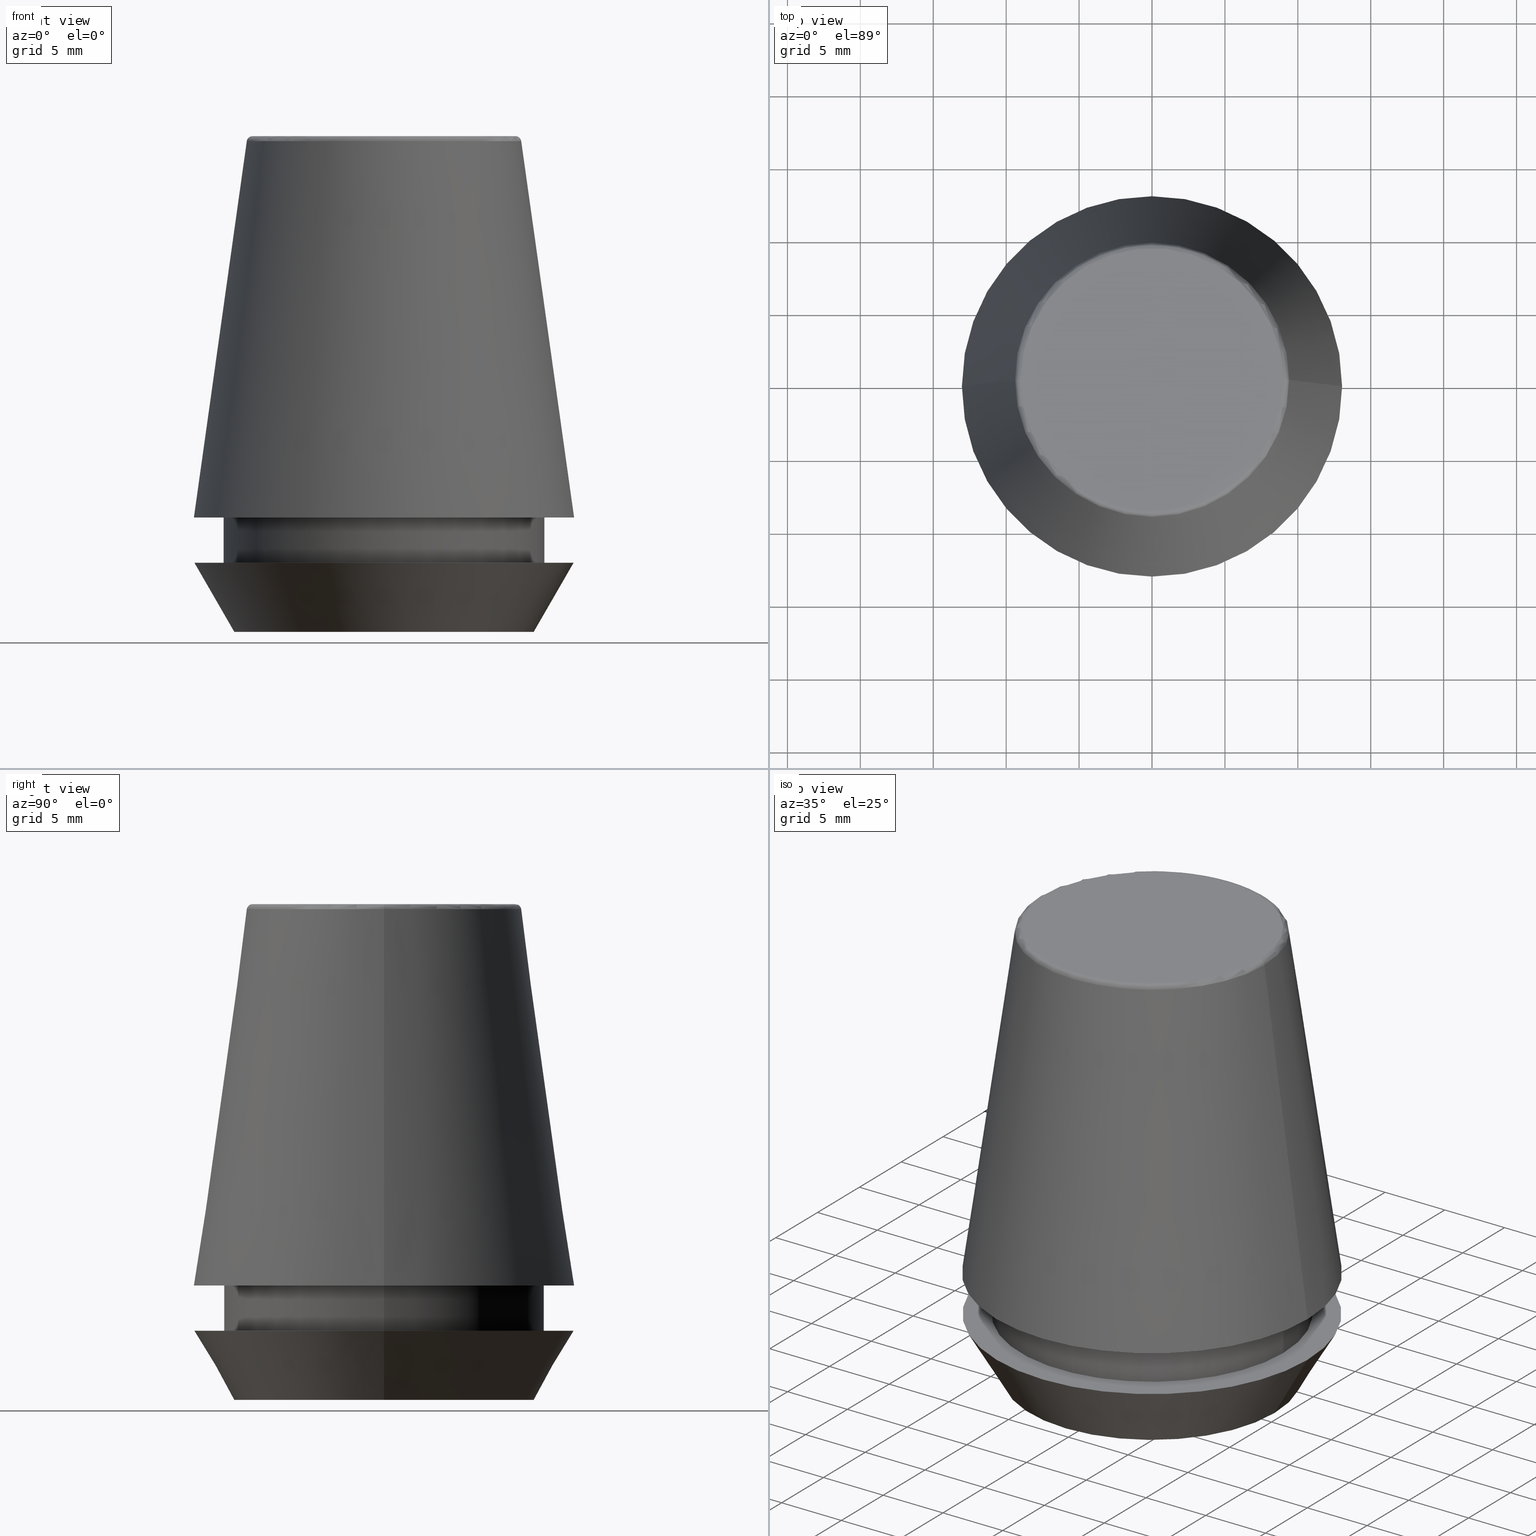
[diagram: canonical four-view strip — front | top / right | iso, engineering-drawing reading convention]
A machine part, canonical four-view strip (front | top / right | iso — engineering-drawing reading convention). The complete STEP part file that produces these views, byte-faithful:
ISO-10303-21;
HEADER;
FILE_DESCRIPTION (( 'STEP AP203' ),
    '1' );
FILE_NAME ('TAP COLLET ER 25G  4.5  X 3.4.STEP',
    '2019-04-09T09:48:16',
    ( '' ),
    ( '' ),
    'SwSTEP 2.0',
    'SolidWorks 2014',
    '' );
FILE_SCHEMA (( 'CONFIG_CONTROL_DESIGN' ));
ENDSEC;

DATA;
#1 = CARTESIAN_POINT ( 'NONE',  ( -10.26217568973925200, 1.256754061072695800E-015, 0.0000000000000000000 ) ) ;
#2 = PERSON ( 'UNSPECIFIED', 'UNSPECIFIED', 'UNSPECIFIED', ('UNSPECIFIED'), ('UNSPECIFIED'), ('UNSPECIFIED') ) ;
#3 = CARTESIAN_POINT ( 'NONE',  ( 0.0000000000000000000, 9.012603057622234500, 34.00000000000000000 ) ) ;
#4 = APPROVAL_PERSON_ORGANIZATION ( #134, #122, #136 ) ;
#5 = CARTESIAN_POINT ( 'NONE',  ( 0.0000000000000000000, 0.0000000000000000000, 4.742050807568884500 ) ) ;
#6 = VERTEX_POINT ( 'NONE', #258 ) ;
#7 = PLANE ( 'NONE',  #203 ) ;
#8 = LINE ( 'NONE', #23, #301 ) ;
#9 = DIRECTION ( 'NONE',  ( -0.0000000000000000000, -0.0000000000000000000, 1.000000000000000000 ) ) ;
#10 = DIRECTION ( 'NONE',  ( 1.000000000000000000, 0.0000000000000000000, 0.0000000000000000000 ) ) ;
#11 = ORIENTED_EDGE ( 'NONE', *, *, #179, .F. ) ;
#12 = ORIENTED_EDGE ( 'NONE', *, *, #238, .T. ) ;
#13 = DIRECTION ( 'NONE',  ( -0.0000000000000000000, -0.0000000000000000000, 1.000000000000000000 ) ) ;
#14 = FACE_OUTER_BOUND ( 'NONE', #103, .T. ) ;
#15 = CARTESIAN_POINT ( 'NONE',  ( 11.00000000000000000, 0.0000000000000000000, 101.8074564848000400 ) ) ;
#16 = APPROVAL ( #25, 'UNSPECIFIED' ) ;
#17 = CIRCLE ( 'NONE', #80, 9.012603057622234500 ) ;
#18 = PERSON_AND_ORGANIZATION ( #2, #51 ) ;
#19 = VERTEX_POINT ( 'NONE', #308 ) ;
#20 = ORIENTED_EDGE ( 'NONE', *, *, #287, .F. ) ;
#21 = CONICAL_SURFACE ( 'NONE', #262, 10.26217568973925200, 0.5235987755982940400 ) ;
#22 = APPROVAL ( #211, 'UNSPECIFIED' ) ;
#23 = CARTESIAN_POINT ( 'NONE',  ( 10.26217568973925200, 0.0000000000000000000, 0.0000000000000000000 ) ) ;
#24 = DATE_AND_TIME ( #330, #378 ) ;
#25 = APPROVAL_STATUS ( 'not_yet_approved' ) ;
#26 = EDGE_LOOP ( 'NONE', ( #252, #148, #291, #194 ) ) ;
#27 = ORIENTED_EDGE ( 'NONE', *, *, #302, .F. ) ;
#28 = ADVANCED_FACE ( 'NONE', ( #367 ), #21, .T. ) ;
#29 = DIRECTION ( 'NONE',  ( -0.0000000000000000000, -0.0000000000000000000, 1.000000000000000000 ) ) ;
#30 = AXIS2_PLACEMENT_3D ( 'NONE', #93, #31, #216 ) ;
#31 = DIRECTION ( 'NONE',  ( -0.0000000000000000000, -0.0000000000000000000, 1.000000000000000000 ) ) ;
#32 = DIRECTION ( 'NONE',  ( 1.000000000000000000, 0.0000000000000000000, 0.0000000000000000000 ) ) ;
#33 = AXIS2_PLACEMENT_3D ( 'NONE', #352, #123, #197 ) ;
#34 = FACE_BOUND ( 'NONE', #143, .T. ) ;
#35 = APPROVAL_ROLE ( '' ) ;
#36 = DIRECTION ( 'NONE',  ( 1.000000000000000000, 0.0000000000000000000, 0.0000000000000000000 ) ) ;
#37 = ORIENTED_EDGE ( 'NONE', *, *, #304, .T. ) ;
#38 = UNCERTAINTY_MEASURE_WITH_UNIT (LENGTH_MEASURE( 1.000000000000000100E-005 ), #382, 'distance_accuracy_value', 'NONE');
#39 = SECURITY_CLASSIFICATION ( '', '', #78 ) ;
#40 = CIRCLE ( 'NONE', #231, 10.26217568973925200 ) ;
#41 = DIRECTION ( 'NONE',  ( 1.000000000000000000, 0.0000000000000000000, 0.0000000000000000000 ) ) ;
#42 = CC_DESIGN_PERSON_AND_ORGANIZATION_ASSIGNMENT ( #253, #281, ( #39 ) ) ;
#43 = ADVANCED_FACE ( 'NONE', ( #188 ), #344, .T. ) ;
#44 = FACE_OUTER_BOUND ( 'NONE', #259, .T. ) ;
#45 = CARTESIAN_POINT ( 'NONE',  ( -10.26217568973925200, 1.424397449982127500E-015, 0.0000000000000000000 ) ) ;
#46 = CC_DESIGN_APPROVAL ( #22, ( #145 ) ) ;
#47 = COORDINATED_UNIVERSAL_TIME_OFFSET ( 5, 30, .AHEAD. ) ;
#48 = DIRECTION ( 'NONE',  ( 0.0000000000000000000, 0.0000000000000000000, -1.000000000000000000 ) ) ;
#49 = CARTESIAN_POINT ( 'NONE',  ( 13.03657776635556700, 1.596520323340289600E-015, 7.842050807568876200 ) ) ;
#50 = ORIENTED_EDGE ( 'NONE', *, *, #319, .F. ) ;
#51 = ORGANIZATION ( 'UNSPECIFIED', 'UNSPECIFIED', '' ) ;
#52 = CARTESIAN_POINT ( 'NONE',  ( 0.0000000000000000000, 0.0000000000000000000, 0.0000000000000000000 ) ) ;
#53 = VECTOR ( 'NONE', #13, 1000.000000000000000 ) ;
#54 = CIRCLE ( 'NONE', #121, 0.4000000000000010200 ) ;
#55 = EDGE_LOOP ( 'NONE', ( #27, #137, #144, #195 ) ) ;
#56 = AXIS2_PLACEMENT_3D ( 'NONE', #60, #351, #240 ) ;
#57 =( GEOMETRIC_REPRESENTATION_CONTEXT ( 3 ) GLOBAL_UNCERTAINTY_ASSIGNED_CONTEXT ( ( #38 ) ) GLOBAL_UNIT_ASSIGNED_CONTEXT ( ( #382, #215, #90 ) ) REPRESENTATION_CONTEXT ( 'NONE', 'WORKASPACE' ) );
#58 = PERSON_AND_ORGANIZATION_ROLE ( 'design_owner' ) ;
#59 = DIRECTION ( 'NONE',  ( -0.0000000000000000000, -0.0000000000000000000, 1.000000000000000000 ) ) ;
#60 = CARTESIAN_POINT ( 'NONE',  ( 0.0000000000000000000, 0.0000000000000000000, 4.742050807568884500 ) ) ;
#61 = FACE_OUTER_BOUND ( 'NONE', #243, .T. ) ;
#62 = APPROVAL_DATE_TIME ( #354, #16 ) ;
#63 = DIRECTION ( 'NONE',  ( 1.000000000000000000, 0.0000000000000000000, 0.0000000000000000000 ) ) ;
#64 = CIRCLE ( 'NONE', #30, 11.00000000000000000 ) ;
#65 = DIRECTION ( 'NONE',  ( 0.0000000000000000000, -0.0000000000000000000, 1.000000000000000000 ) ) ;
#66 = APPROVAL_PERSON_ORGANIZATION ( #18, #22, #35 ) ;
#67 = CARTESIAN_POINT ( 'NONE',  ( 0.0000000000000000000, 0.0000000000000000000, 0.0000000000000000000 ) ) ;
#68 = VERTEX_POINT ( 'NONE', #151 ) ;
#69 = DIRECTION ( 'NONE',  ( 1.000000000000000000, 0.0000000000000000000, 0.0000000000000000000 ) ) ;
#70 = DIRECTION ( 'NONE',  ( 1.000000000000000000, 0.0000000000000000000, 0.0000000000000000000 ) ) ;
#71 = DESIGN_CONTEXT ( 'detailed design', #228, 'design' ) ;
#72 = PRODUCT_DEFINITION ( 'UNKNOWN', '', #145, #71 ) ;
#73 = ORIENTED_EDGE ( 'NONE', *, *, #241, .T. ) ;
#74 = APPROVAL_DATE_TIME ( #316, #122 ) ;
#75 = CIRCLE ( 'NONE', #245, 9.012603057622234500 ) ;
#76 = VERTEX_POINT ( 'NONE', #371 ) ;
#77 = DIRECTION ( 'NONE',  ( 0.1391731009600587800, 1.704378926181474000E-017, -0.9902680687415712500 ) ) ;
#78 = SECURITY_CLASSIFICATION_LEVEL ( 'unclassified' ) ;
#79 = LINE ( 'NONE', #15, #53 ) ;
#80 = AXIS2_PLACEMENT_3D ( 'NONE', #328, #220, #101 ) ;
#81 = DIRECTION ( 'NONE',  ( -1.000000000000000000, 0.0000000000000000000, 0.0000000000000000000 ) ) ;
#82 = ORIENTED_EDGE ( 'NONE', *, *, #238, .F. ) ;
#83 = PRODUCT_RELATED_PRODUCT_CATEGORY ( 'detail', '', ( #153 ) ) ;
#84 = LOCAL_TIME ( 15, 18, 16.00000000000000000, #256 ) ;
#85 = ORIENTED_EDGE ( 'NONE', *, *, #282, .T. ) ;
#86 = CIRCLE ( 'NONE', #266, 9.408710285118862900 ) ;
#87 = ORIENTED_EDGE ( 'NONE', *, *, #213, .T. ) ;
#88 = CARTESIAN_POINT ( 'NONE',  ( 0.0000000000000000000, 0.0000000000000000000, 34.00000000000000000 ) ) ;
#89 = DATE_AND_TIME ( #229, #84 ) ;
#90 =( NAMED_UNIT ( * ) SI_UNIT ( $, .STERADIAN. ) SOLID_ANGLE_UNIT ( ) );
#91 = ORIENTED_EDGE ( 'NONE', *, *, #365, .F. ) ;
#92 = PERSON_AND_ORGANIZATION_ROLE ( 'creator' ) ;
#93 = CARTESIAN_POINT ( 'NONE',  ( 0.0000000000000000000, 0.0000000000000000000, 7.842050807568890400 ) ) ;
#94 = CIRCLE ( 'NONE', #157, 13.00000000000000000 ) ;
#95 = DIRECTION ( 'NONE',  ( -1.000000000000000000, 1.224646799147353200E-016, 0.0000000000000000000 ) ) ;
#96 = DIRECTION ( 'NONE',  ( -0.4999999999999957800, 6.123233995736714300E-017, 0.8660254037844410400 ) ) ;
#97 = CC_DESIGN_APPROVAL ( #16, ( #72 ) ) ;
#98 = DIRECTION ( 'NONE',  ( 1.000000000000000000, 0.0000000000000000000, 0.0000000000000000000 ) ) ;
#99 = VERTEX_POINT ( 'NONE', #45 ) ;
#100 = FACE_OUTER_BOUND ( 'NONE', #315, .T. ) ;
#101 = DIRECTION ( 'NONE',  ( 1.000000000000000000, 0.0000000000000000000, 0.0000000000000000000 ) ) ;
#102 = PERSON_AND_ORGANIZATION_ROLE ( 'creator' ) ;
#103 = EDGE_LOOP ( 'NONE', ( #87, #73, #239, #91 ) ) ;
#104 = CC_DESIGN_DATE_AND_TIME_ASSIGNMENT ( #377, #112, ( #39 ) ) ;
#105 = CARTESIAN_POINT ( 'NONE',  ( 0.0000000000000000000, 0.0000000000000000000, 101.8074564848000400 ) ) ;
#106 = ORIENTED_EDGE ( 'NONE', *, *, #372, .T. ) ;
#107 = DIRECTION ( 'NONE',  ( -0.0000000000000000000, -0.0000000000000000000, 1.000000000000000000 ) ) ;
#108 = CARTESIAN_POINT ( 'NONE',  ( -9.408710285118862900, 0.0000000000000000000, 33.65566924038402900 ) ) ;
#109 = ORIENTED_EDGE ( 'NONE', *, *, #336, .T. ) ;
#110 = FACE_OUTER_BOUND ( 'NONE', #55, .T. ) ;
#111 = DIRECTION ( 'NONE',  ( 0.0000000000000000000, 0.0000000000000000000, -1.000000000000000000 ) ) ;
#112 = DATE_TIME_ROLE ( 'classification_date' ) ;
#113 = CARTESIAN_POINT ( 'NONE',  ( 9.012603057622234500, 0.0000000000000000000, 33.60000000000000100 ) ) ;
#114 = DIRECTION ( 'NONE',  ( 1.000000000000000000, 0.0000000000000000000, 0.0000000000000000000 ) ) ;
#115 = AXIS2_PLACEMENT_3D ( 'NONE', #113, #385, #185 ) ;
#116 = COORDINATED_UNIVERSAL_TIME_OFFSET ( 5, 30, .AHEAD. ) ;
#117 = LINE ( 'NONE', #300, #264 ) ;
#118 = ORIENTED_EDGE ( 'NONE', *, *, #175, .T. ) ;
#119 = TOROIDAL_SURFACE ( 'NONE', #324, 9.012603057622234500, 0.4000000000000009700 ) ;
#120 = LINE ( 'NONE', #290, #317 ) ;
#121 = AXIS2_PLACEMENT_3D ( 'NONE', #189, #349, #95 ) ;
#122 = APPROVAL ( #311, 'UNSPECIFIED' ) ;
#123 = DIRECTION ( 'NONE',  ( -0.0000000000000000000, -0.0000000000000000000, 1.000000000000000000 ) ) ;
#124 = CARTESIAN_POINT ( 'NONE',  ( -9.012603057622234500, 1.127980121063915600E-015, 34.00000000000000000 ) ) ;
#125 = CYLINDRICAL_SURFACE ( 'NONE', #341, 11.00000000000000000 ) ;
#126 = AXIS2_PLACEMENT_3D ( 'NONE', #202, #140, #32 ) ;
#127 = DIRECTION ( 'NONE',  ( -0.0000000000000000000, -0.0000000000000000000, 1.000000000000000000 ) ) ;
#128 = DIRECTION ( 'NONE',  ( -0.0000000000000000000, -0.0000000000000000000, 1.000000000000000000 ) ) ;
#129 = ORIENTED_EDGE ( 'NONE', *, *, #241, .F. ) ;
#130 = ORIENTED_EDGE ( 'NONE', *, *, #365, .T. ) ;
#131 = EDGE_LOOP ( 'NONE', ( #173, #12 ) ) ;
#132 = ADVANCED_FACE ( 'NONE', ( #34, #44 ), #227, .F. ) ;
#133 = ORIENTED_EDGE ( 'NONE', *, *, #302, .T. ) ;
#134 = PERSON_AND_ORGANIZATION ( #2, #51 ) ;
#135 = VECTOR ( 'NONE', #96, 1000.000000000000200 ) ;
#136 = APPROVAL_ROLE ( '' ) ;
#137 = ORIENTED_EDGE ( 'NONE', *, *, #223, .T. ) ;
#138 = CARTESIAN_POINT ( 'NONE',  ( 0.0000000000000000000, 0.0000000000000000000, 33.65566924038402900 ) ) ;
#139 = ADVANCED_FACE ( 'NONE', ( #353 ), #119, .T. ) ;
#140 = DIRECTION ( 'NONE',  ( -0.0000000000000000000, -0.0000000000000000000, 1.000000000000000000 ) ) ;
#141 = CC_DESIGN_PERSON_AND_ORGANIZATION_ASSIGNMENT ( #276, #102, ( #72 ) ) ;
#142 = VERTEX_POINT ( 'NONE', #288 ) ;
#143 = EDGE_LOOP ( 'NONE', ( #374, #306 ) ) ;
#144 = ORIENTED_EDGE ( 'NONE', *, *, #381, .T. ) ;
#145 = PRODUCT_DEFINITION_FORMATION_WITH_SPECIFIED_SOURCE ( 'ANY', '', #153, .NOT_KNOWN. ) ;
#146 = AXIS2_PLACEMENT_3D ( 'NONE', #138, #205, #296 ) ;
#147 = APPLICATION_CONTEXT ( 'configuration controlled 3d designs of mechanical parts and assemblies' ) ;
#148 = ORIENTED_EDGE ( 'NONE', *, *, #366, .T. ) ;
#149 = CC_DESIGN_APPROVAL ( #122, ( #39 ) ) ;
#150 = CIRCLE ( 'NONE', #115, 0.3999999999999975800 ) ;
#151 = CARTESIAN_POINT ( 'NONE',  ( -13.00000000000000000, 1.592040838891559100E-015, 4.742050807568884500 ) ) ;
#152 = CARTESIAN_POINT ( 'NONE',  ( 0.0000000000000000000, 13.03657776635556700, 7.842050807568883300 ) ) ;
#153 = PRODUCT ( 'TAP COLLET ER 25G  4.5  X 3.4', 'TAP COLLET ER 25G  4.5  X 3.4', '', ( #177 ) ) ;
#154 = VERTEX_POINT ( 'NONE', #108 ) ;
#155 = CARTESIAN_POINT ( 'NONE',  ( 9.408710285118862900, 1.374377508408924700E-015, 33.65566924038402900 ) ) ;
#156 = CIRCLE ( 'NONE', #251, 13.03657776635556700 ) ;
#157 = AXIS2_PLACEMENT_3D ( 'NONE', #326, #387, #201 ) ;
#158 = CIRCLE ( 'NONE', #198, 11.00000000000000000 ) ;
#159 = CARTESIAN_POINT ( 'NONE',  ( 0.0000000000000000000, 0.0000000000000000000, 33.65566924038402900 ) ) ;
#160 = ADVANCED_FACE ( 'NONE', ( #271 ), #234, .T. ) ;
#161 = CARTESIAN_POINT ( 'NONE',  ( 10.26217568973925200, 0.0000000000000000000, 0.0000000000000000000 ) ) ;
#162 = AXIS2_PLACEMENT_3D ( 'NONE', #152, #65, #98 ) ;
#163 = AXIS2_PLACEMENT_3D ( 'NONE', #303, #193, #36 ) ;
#164 = DIRECTION ( 'NONE',  ( -0.0000000000000000000, -0.0000000000000000000, 1.000000000000000000 ) ) ;
#165 = EDGE_LOOP ( 'NONE', ( #11, #233 ) ) ;
#166 = DIRECTION ( 'NONE',  ( 1.000000000000000000, 0.0000000000000000000, 0.0000000000000000000 ) ) ;
#167 = DIRECTION ( 'NONE',  ( -0.0000000000000000000, -0.0000000000000000000, 1.000000000000000000 ) ) ;
#168 = DIRECTION ( 'NONE',  ( -1.000000000000000000, 0.0000000000000000000, 0.0000000000000000000 ) ) ;
#169 = PLANE ( 'NONE',  #187 ) ;
#170 = CIRCLE ( 'NONE', #163, 11.00000000000000000 ) ;
#171 = ORIENTED_EDGE ( 'NONE', *, *, #304, .F. ) ;
#172 = ADVANCED_FACE ( 'NONE', ( #61 ), #200, .T. ) ;
#173 = ORIENTED_EDGE ( 'NONE', *, *, #319, .T. ) ;
#174 = PERSON_AND_ORGANIZATION ( #2, #51 ) ;
#175 = EDGE_CURVE ( 'NONE', #338, #232, #156, .T. ) ;
#176 = CC_DESIGN_PERSON_AND_ORGANIZATION_ASSIGNMENT ( #286, #58, ( #153 ) ) ;
#177 = MECHANICAL_CONTEXT ( 'NONE', #147, 'mechanical' ) ;
#178 = EDGE_LOOP ( 'NONE', ( #181, #384, #292, #118 ) ) ;
#179 = EDGE_CURVE ( 'NONE', #218, #99, #321, .T. ) ;
#180 = DIRECTION ( 'NONE',  ( 0.0000000000000000000, -0.0000000000000000000, 1.000000000000000000 ) ) ;
#181 = ORIENTED_EDGE ( 'NONE', *, *, #366, .F. ) ;
#182 = ADVANCED_FACE ( 'NONE', ( #110 ), #279, .T. ) ;
#183 = CIRCLE ( 'NONE', #226, 11.00000000000000000 ) ;
#184 = DIRECTION ( 'NONE',  ( -1.000000000000000000, 0.0000000000000000000, -0.0000000000000000000 ) ) ;
#185 = DIRECTION ( 'NONE',  ( 0.0000000000000000000, 0.0000000000000000000, -1.000000000000000000 ) ) ;
#186 = PERSON_AND_ORGANIZATION ( #2, #51 ) ;
#187 = AXIS2_PLACEMENT_3D ( 'NONE', #52, #180, #214 ) ;
#188 = FACE_OUTER_BOUND ( 'NONE', #178, .T. ) ;
#189 = CARTESIAN_POINT ( 'NONE',  ( -9.012603057622234500, 1.103725548650271700E-015, 33.60000000000000100 ) ) ;
#190 = DIRECTION ( 'NONE',  ( 1.000000000000000000, 0.0000000000000000000, 0.0000000000000000000 ) ) ;
#191 = CARTESIAN_POINT ( 'NONE',  ( 0.0000000000000000000, 0.0000000000000000000, 0.0000000000000000000 ) ) ;
#192 = CLOSED_SHELL ( 'NONE', ( #172, #160, #357, #28, #369, #182, #132, #196, #257, #43, #139, #246 ) ) ;
#193 = DIRECTION ( 'NONE',  ( -0.0000000000000000000, -0.0000000000000000000, 1.000000000000000000 ) ) ;
#194 = ORIENTED_EDGE ( 'NONE', *, *, #343, .F. ) ;
#195 = ORIENTED_EDGE ( 'NONE', *, *, #362, .F. ) ;
#196 = ADVANCED_FACE ( 'NONE', ( #209 ), #125, .T. ) ;
#197 = DIRECTION ( 'NONE',  ( 1.000000000000000000, 0.0000000000000000000, 0.0000000000000000000 ) ) ;
#198 = AXIS2_PLACEMENT_3D ( 'NONE', #5, #29, #348 ) ;
#199 = DIRECTION ( 'NONE',  ( -0.0000000000000000000, -0.0000000000000000000, 1.000000000000000000 ) ) ;
#200 = TOROIDAL_SURFACE ( 'NONE', #242, 9.012603057622234500, 0.4000000000000009700 ) ;
#201 = DIRECTION ( 'NONE',  ( 1.000000000000000000, 0.0000000000000000000, 0.0000000000000000000 ) ) ;
#202 = CARTESIAN_POINT ( 'NONE',  ( 0.0000000000000000000, 0.0000000000000000000, 7.842050807568876200 ) ) ;
#203 = AXIS2_PLACEMENT_3D ( 'NONE', #3, #247, #274 ) ;
#204 = FACE_OUTER_BOUND ( 'NONE', #165, .T. ) ;
#205 = DIRECTION ( 'NONE',  ( -0.0000000000000000000, -0.0000000000000000000, 1.000000000000000000 ) ) ;
#206 = APPROVAL_PERSON_ORGANIZATION ( #174, #16, #222 ) ;
#207 = CARTESIAN_POINT ( 'NONE',  ( 0.0000000000000000000, 0.0000000000000000000, 7.842050807568876200 ) ) ;
#208 = MANIFOLD_SOLID_BREP ( 'Revolve1', #192 ) ;
#209 = FACE_OUTER_BOUND ( 'NONE', #299, .T. ) ;
#210 = LINE ( 'NONE', #1, #135 ) ;
#211 = APPROVAL_STATUS ( 'not_yet_approved' ) ;
#212 = APPLICATION_PROTOCOL_DEFINITION ( 'international standard', 'config_control_design', 1994, #147 ) ;
#213 = EDGE_CURVE ( 'NONE', #19, #142, #170, .T. ) ;
#214 = DIRECTION ( 'NONE',  ( 1.000000000000000000, 0.0000000000000000000, 0.0000000000000000000 ) ) ;
#215 =( NAMED_UNIT ( * ) PLANE_ANGLE_UNIT ( ) SI_UNIT ( $, .RADIAN. ) );
#216 = DIRECTION ( 'NONE',  ( 1.000000000000000000, 0.0000000000000000000, 0.0000000000000000000 ) ) ;
#217 = EDGE_CURVE ( 'NONE', #154, #265, #86, .T. ) ;
#218 = VERTEX_POINT ( 'NONE', #161 ) ;
#219 = CIRCLE ( 'NONE', #56, 13.00000000000000000 ) ;
#220 = DIRECTION ( 'NONE',  ( -0.0000000000000000000, -0.0000000000000000000, 1.000000000000000000 ) ) ;
#221 = VERTEX_POINT ( 'NONE', #277 ) ;
#222 = APPROVAL_ROLE ( '' ) ;
#223 = EDGE_CURVE ( 'NONE', #99, #218, #40, .T. ) ;
#224 = CARTESIAN_POINT ( 'NONE',  ( 0.0000000000000000000, 0.0000000000000000000, 0.0000000000000000000 ) ) ;
#225 = ORIENTED_EDGE ( 'NONE', *, *, #336, .F. ) ;
#226 = AXIS2_PLACEMENT_3D ( 'NONE', #331, #358, #323 ) ;
#227 = PLANE ( 'NONE',  #318 ) ;
#228 = APPLICATION_CONTEXT ( 'configuration controlled 3d designs of mechanical parts and assemblies' ) ;
#229 = CALENDAR_DATE ( 2019, 9, 4 ) ;
#230 = ORIENTED_EDGE ( 'NONE', *, *, #314, .T. ) ;
#231 = AXIS2_PLACEMENT_3D ( 'NONE', #67, #128, #190 ) ;
#232 = VERTEX_POINT ( 'NONE', #329 ) ;
#233 = ORIENTED_EDGE ( 'NONE', *, *, #223, .F. ) ;
#234 = CONICAL_SURFACE ( 'NONE', #350, 13.03657776635556700, 0.1396263401595396500 ) ;
#235 = AXIS2_PLACEMENT_3D ( 'NONE', #332, #164, #41 ) ;
#236 = LOCAL_TIME ( 15, 18, 16.00000000000000000, #47 ) ;
#237 = APPLICATION_PROTOCOL_DEFINITION ( 'international standard', 'config_control_design', 1994, #228 ) ;
#238 = EDGE_CURVE ( 'NONE', #325, #76, #17, .T. ) ;
#239 = ORIENTED_EDGE ( 'NONE', *, *, #376, .F. ) ;
#240 = DIRECTION ( 'NONE',  ( 1.000000000000000000, 0.0000000000000000000, 0.0000000000000000000 ) ) ;
#241 = EDGE_CURVE ( 'NONE', #142, #294, #117, .T. ) ;
#242 = AXIS2_PLACEMENT_3D ( 'NONE', #307, #167, #166 ) ;
#243 = EDGE_LOOP ( 'NONE', ( #85, #109, #50, #283 ) ) ;
#244 = EDGE_LOOP ( 'NONE', ( #363, #37 ) ) ;
#245 = AXIS2_PLACEMENT_3D ( 'NONE', #88, #59, #63 ) ;
#246 = ADVANCED_FACE ( 'NONE', ( #260 ), #7, .F. ) ;
#247 = DIRECTION ( 'NONE',  ( 0.0000000000000000000, 0.0000000000000000000, -1.000000000000000000 ) ) ;
#248 = CALENDAR_DATE ( 2019, 9, 4 ) ;
#249 = AXIS2_PLACEMENT_3D ( 'NONE', #191, #268, #293 ) ;
#250 = DIRECTION ( 'NONE',  ( -0.1391731009600587800, 0.0000000000000000000, -0.9902680687415712500 ) ) ;
#251 = AXIS2_PLACEMENT_3D ( 'NONE', #305, #107, #10 ) ;
#252 = ORIENTED_EDGE ( 'NONE', *, *, #282, .F. ) ;
#253 = PERSON_AND_ORGANIZATION ( #2, #51 ) ;
#254 = ORIENTED_EDGE ( 'NONE', *, *, #381, .F. ) ;
#255 = DIRECTION ( 'NONE',  ( 1.000000000000000000, 0.0000000000000000000, 0.0000000000000000000 ) ) ;
#256 = COORDINATED_UNIVERSAL_TIME_OFFSET ( 5, 30, .AHEAD. ) ;
#257 = ADVANCED_FACE ( 'NONE', ( #100, #327 ), #272, .F. ) ;
#258 = CARTESIAN_POINT ( 'NONE',  ( 13.00000000000000000, 0.0000000000000000000, 4.742050807568884500 ) ) ;
#259 = EDGE_LOOP ( 'NONE', ( #275, #270 ) ) ;
#260 = FACE_OUTER_BOUND ( 'NONE', #131, .T. ) ;
#261 = PERSON_AND_ORGANIZATION_ROLE ( 'design_supplier' ) ;
#262 = AXIS2_PLACEMENT_3D ( 'NONE', #269, #342, #114 ) ;
#263 = CC_DESIGN_PERSON_AND_ORGANIZATION_ASSIGNMENT ( #186, #92, ( #145 ) ) ;
#264 = VECTOR ( 'NONE', #127, 1000.000000000000000 ) ;
#265 = VERTEX_POINT ( 'NONE', #155 ) ;
#266 = AXIS2_PLACEMENT_3D ( 'NONE', #159, #361, #69 ) ;
#267 = CALENDAR_DATE ( 2019, 9, 4 ) ;
#268 = DIRECTION ( 'NONE',  ( 0.0000000000000000000, 0.0000000000000000000, 1.000000000000000000 ) ) ;
#269 = CARTESIAN_POINT ( 'NONE',  ( 0.0000000000000000000, 0.0000000000000000000, 0.0000000000000000000 ) ) ;
#270 = ORIENTED_EDGE ( 'NONE', *, *, #362, .T. ) ;
#271 = FACE_OUTER_BOUND ( 'NONE', #26, .T. ) ;
#272 = PLANE ( 'NONE',  #162 ) ;
#273 = LINE ( 'NONE', #49, #375 ) ;
#274 = DIRECTION ( 'NONE',  ( -1.000000000000000000, 0.0000000000000000000, -0.0000000000000000000 ) ) ;
#275 = ORIENTED_EDGE ( 'NONE', *, *, #312, .T. ) ;
#276 = PERSON_AND_ORGANIZATION ( #2, #51 ) ;
#277 = CARTESIAN_POINT ( 'NONE',  ( 11.00000000000000000, 0.0000000000000000000, 7.842050807568890400 ) ) ;
#278 = DIRECTION ( 'NONE',  ( -0.0000000000000000000, -0.0000000000000000000, 1.000000000000000000 ) ) ;
#279 = CONICAL_SURFACE ( 'NONE', #383, 10.26217568973925200, 0.5235987755982940400 ) ;
#280 = COORDINATED_UNIVERSAL_TIME_OFFSET ( 5, 30, .AHEAD. ) ;
#281 = PERSON_AND_ORGANIZATION_ROLE ( 'classification_officer' ) ;
#282 = EDGE_CURVE ( 'NONE', #265, #154, #285, .T. ) ;
#283 = ORIENTED_EDGE ( 'NONE', *, *, #314, .F. ) ;
#284 = AXIS2_PLACEMENT_3D ( 'NONE', #356, #111, #168 ) ;
#285 = CIRCLE ( 'NONE', #146, 9.408710285118862900 ) ;
#286 = PERSON_AND_ORGANIZATION ( #2, #51 ) ;
#287 = EDGE_CURVE ( 'NONE', #232, #338, #335, .T. ) ;
#288 = CARTESIAN_POINT ( 'NONE',  ( -11.00000000000000000, 1.347111479062088400E-015, 4.742050807568884500 ) ) ;
#289 = ORIENTED_EDGE ( 'NONE', *, *, #217, .T. ) ;
#290 = CARTESIAN_POINT ( 'NONE',  ( -13.03657776635556700, 0.0000000000000000000, 7.842050807568876200 ) ) ;
#291 = ORIENTED_EDGE ( 'NONE', *, *, #287, .T. ) ;
#292 = ORIENTED_EDGE ( 'NONE', *, *, #343, .T. ) ;
#293 = DIRECTION ( 'NONE',  ( 1.000000000000000000, 0.0000000000000000000, 0.0000000000000000000 ) ) ;
#294 = VERTEX_POINT ( 'NONE', #355 ) ;
#295 = CC_DESIGN_PERSON_AND_ORGANIZATION_ASSIGNMENT ( #309, #261, ( #145 ) ) ;
#296 = DIRECTION ( 'NONE',  ( 1.000000000000000000, 0.0000000000000000000, 0.0000000000000000000 ) ) ;
#297 = DIRECTION ( 'NONE',  ( 1.000000000000000000, 0.0000000000000000000, 0.0000000000000000000 ) ) ;
#298 = CARTESIAN_POINT ( 'NONE',  ( -13.03657776635556700, 0.0000000000000000000, 7.842050807568876200 ) ) ;
#299 = EDGE_LOOP ( 'NONE', ( #129, #106, #130, #171 ) ) ;
#300 = CARTESIAN_POINT ( 'NONE',  ( -11.00000000000000000, 1.347111479062088400E-015, 101.8074564848000400 ) ) ;
#301 = VECTOR ( 'NONE', #345, 1000.000000000000200 ) ;
#302 = EDGE_CURVE ( 'NONE', #99, #68, #210, .T. ) ;
#303 = CARTESIAN_POINT ( 'NONE',  ( 0.0000000000000000000, 0.0000000000000000000, 4.742050807568884500 ) ) ;
#304 = EDGE_CURVE ( 'NONE', #294, #221, #64, .T. ) ;
#305 = CARTESIAN_POINT ( 'NONE',  ( 0.0000000000000000000, 0.0000000000000000000, 7.842050807568876200 ) ) ;
#306 = ORIENTED_EDGE ( 'NONE', *, *, #372, .F. ) ;
#307 = CARTESIAN_POINT ( 'NONE',  ( 0.0000000000000000000, 0.0000000000000000000, 33.60000000000000100 ) ) ;
#308 = CARTESIAN_POINT ( 'NONE',  ( 11.00000000000000000, 0.0000000000000000000, 4.742050807568884500 ) ) ;
#309 = PERSON_AND_ORGANIZATION ( #2, #51 ) ;
#310 = EDGE_LOOP ( 'NONE', ( #225, #289, #230, #82 ) ) ;
#311 = APPROVAL_STATUS ( 'not_yet_approved' ) ;
#312 = EDGE_CURVE ( 'NONE', #6, #68, #219, .T. ) ;
#313 = ORIENTED_EDGE ( 'NONE', *, *, #175, .F. ) ;
#314 = EDGE_CURVE ( 'NONE', #265, #76, #150, .T. ) ;
#315 = EDGE_LOOP ( 'NONE', ( #313, #20 ) ) ;
#316 = DATE_AND_TIME ( #359, #236 ) ;
#317 = VECTOR ( 'NONE', #250, 1000.000000000000000 ) ;
#318 = AXIS2_PLACEMENT_3D ( 'NONE', #370, #48, #184 ) ;
#319 = EDGE_CURVE ( 'NONE', #76, #325, #75, .T. ) ;
#320 = ORIENTED_EDGE ( 'NONE', *, *, #179, .T. ) ;
#321 = CIRCLE ( 'NONE', #235, 10.26217568973925200 ) ;
#322 = CC_DESIGN_DATE_AND_TIME_ASSIGNMENT ( #89, #379, ( #72 ) ) ;
#323 = DIRECTION ( 'NONE',  ( 1.000000000000000000, 0.0000000000000000000, 0.0000000000000000000 ) ) ;
#324 = AXIS2_PLACEMENT_3D ( 'NONE', #333, #199, #297 ) ;
#325 = VERTEX_POINT ( 'NONE', #124 ) ;
#326 = CARTESIAN_POINT ( 'NONE',  ( 0.0000000000000000000, 0.0000000000000000000, 4.742050807568884500 ) ) ;
#327 = FACE_BOUND ( 'NONE', #244, .T. ) ;
#328 = CARTESIAN_POINT ( 'NONE',  ( 0.0000000000000000000, 0.0000000000000000000, 34.00000000000000000 ) ) ;
#329 = CARTESIAN_POINT ( 'NONE',  ( 13.03657776635556700, 1.596520323340289600E-015, 7.842050807568876200 ) ) ;
#330 = CALENDAR_DATE ( 2019, 9, 4 ) ;
#331 = CARTESIAN_POINT ( 'NONE',  ( 0.0000000000000000000, 0.0000000000000000000, 7.842050807568890400 ) ) ;
#332 = CARTESIAN_POINT ( 'NONE',  ( 0.0000000000000000000, 0.0000000000000000000, 0.0000000000000000000 ) ) ;
#333 = CARTESIAN_POINT ( 'NONE',  ( 0.0000000000000000000, 0.0000000000000000000, 33.60000000000000100 ) ) ;
#334 = APPROVAL_DATE_TIME ( #24, #22 ) ;
#335 = CIRCLE ( 'NONE', #126, 13.03657776635556700 ) ;
#336 = EDGE_CURVE ( 'NONE', #154, #325, #54, .T. ) ;
#337 = CYLINDRICAL_SURFACE ( 'NONE', #33, 11.00000000000000000 ) ;
#338 = VERTEX_POINT ( 'NONE', #298 ) ;
#339 = LOCAL_TIME ( 15, 18, 16.00000000000000000, #116 ) ;
#340 = LOCAL_TIME ( 15, 18, 16.00000000000000000, #280 ) ;
#341 = AXIS2_PLACEMENT_3D ( 'NONE', #105, #9, #70 ) ;
#342 = DIRECTION ( 'NONE',  ( -0.0000000000000000000, -0.0000000000000000000, 1.000000000000000000 ) ) ;
#343 = EDGE_CURVE ( 'NONE', #154, #338, #120, .T. ) ;
#344 = CONICAL_SURFACE ( 'NONE', #284, 13.03657776635556700, 0.1396263401595396500 ) ;
#345 = DIRECTION ( 'NONE',  ( 0.4999999999999957800, 0.0000000000000000000, 0.8660254037844410400 ) ) ;
#346 = COORDINATED_UNIVERSAL_TIME_OFFSET ( 5, 30, .AHEAD. ) ;
#347 = EDGE_LOOP ( 'NONE', ( #320, #133, #386, #254 ) ) ;
#348 = DIRECTION ( 'NONE',  ( 1.000000000000000000, 0.0000000000000000000, 0.0000000000000000000 ) ) ;
#349 = DIRECTION ( 'NONE',  ( 1.224646799147353200E-016, 1.000000000000000000, 0.0000000000000000000 ) ) ;
#350 = AXIS2_PLACEMENT_3D ( 'NONE', #207, #368, #81 ) ;
#351 = DIRECTION ( 'NONE',  ( -0.0000000000000000000, -0.0000000000000000000, 1.000000000000000000 ) ) ;
#352 = CARTESIAN_POINT ( 'NONE',  ( 0.0000000000000000000, 0.0000000000000000000, 101.8074564848000400 ) ) ;
#353 = FACE_OUTER_BOUND ( 'NONE', #310, .T. ) ;
#354 = DATE_AND_TIME ( #267, #340 ) ;
#355 = CARTESIAN_POINT ( 'NONE',  ( -11.00000000000000000, 1.347111479062088400E-015, 7.842050807568890400 ) ) ;
#356 = CARTESIAN_POINT ( 'NONE',  ( 0.0000000000000000000, 0.0000000000000000000, 7.842050807568876200 ) ) ;
#357 = ADVANCED_FACE ( 'NONE', ( #14 ), #337, .T. ) ;
#358 = DIRECTION ( 'NONE',  ( -0.0000000000000000000, -0.0000000000000000000, 1.000000000000000000 ) ) ;
#359 = CALENDAR_DATE ( 2019, 9, 4 ) ;
#360 = PRODUCT_DEFINITION_SHAPE ( 'NONE', 'NONE',  #72 ) ;
#361 = DIRECTION ( 'NONE',  ( -0.0000000000000000000, -0.0000000000000000000, 1.000000000000000000 ) ) ;
#362 = EDGE_CURVE ( 'NONE', #68, #6, #94, .T. ) ;
#363 = ORIENTED_EDGE ( 'NONE', *, *, #376, .T. ) ;
#364 = ADVANCED_BREP_SHAPE_REPRESENTATION ( 'TAP COLLET ER 25G  4.5  X 3.4', ( #208, #249 ), #57 ) ;
#365 = EDGE_CURVE ( 'NONE', #19, #221, #79, .T. ) ;
#366 = EDGE_CURVE ( 'NONE', #265, #232, #273, .T. ) ;
#367 = FACE_OUTER_BOUND ( 'NONE', #347, .T. ) ;
#368 = DIRECTION ( 'NONE',  ( 0.0000000000000000000, 0.0000000000000000000, -1.000000000000000000 ) ) ;
#369 = ADVANCED_FACE ( 'NONE', ( #204 ), #169, .F. ) ;
#370 = CARTESIAN_POINT ( 'NONE',  ( 0.0000000000000000000, 13.00000000000000000, 4.742050807568884500 ) ) ;
#371 = CARTESIAN_POINT ( 'NONE',  ( 9.012603057622234500, 0.0000000000000000000, 34.00000000000000000 ) ) ;
#372 = EDGE_CURVE ( 'NONE', #142, #19, #158, .T. ) ;
#373 = CC_DESIGN_SECURITY_CLASSIFICATION ( #39, ( #145 ) ) ;
#374 = ORIENTED_EDGE ( 'NONE', *, *, #213, .F. ) ;
#375 = VECTOR ( 'NONE', #77, 1000.000000000000000 ) ;
#376 = EDGE_CURVE ( 'NONE', #221, #294, #183, .T. ) ;
#377 = DATE_AND_TIME ( #248, #339 ) ;
#378 = LOCAL_TIME ( 15, 18, 16.00000000000000000, #346 ) ;
#379 = DATE_TIME_ROLE ( 'creation_date' ) ;
#380 = SHAPE_DEFINITION_REPRESENTATION ( #360, #364 ) ;
#381 = EDGE_CURVE ( 'NONE', #218, #6, #8, .T. ) ;
#382 =( LENGTH_UNIT ( ) NAMED_UNIT ( * ) SI_UNIT ( .MILLI., .METRE. ) );
#383 = AXIS2_PLACEMENT_3D ( 'NONE', #224, #278, #255 ) ;
#384 = ORIENTED_EDGE ( 'NONE', *, *, #217, .F. ) ;
#385 = DIRECTION ( 'NONE',  ( 0.0000000000000000000, -1.000000000000000000, 0.0000000000000000000 ) ) ;
#386 = ORIENTED_EDGE ( 'NONE', *, *, #312, .F. ) ;
#387 = DIRECTION ( 'NONE',  ( -0.0000000000000000000, -0.0000000000000000000, 1.000000000000000000 ) ) ;
ENDSEC;
END-ISO-10303-21;
